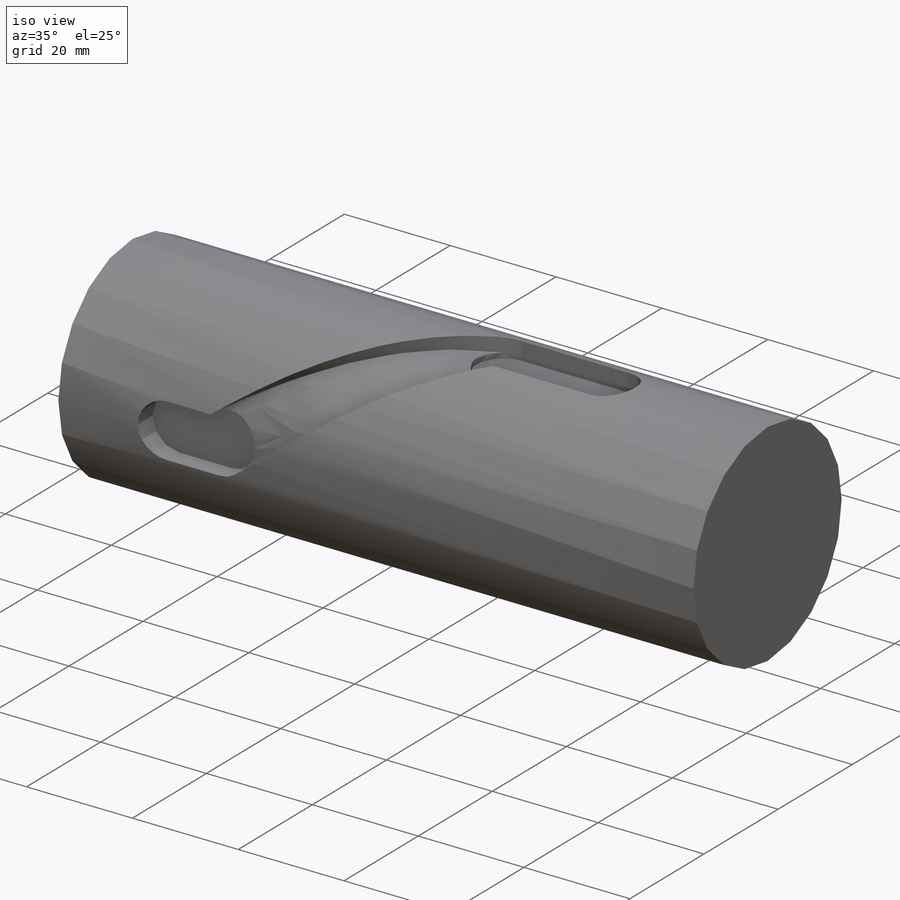
[diagram: iso view]
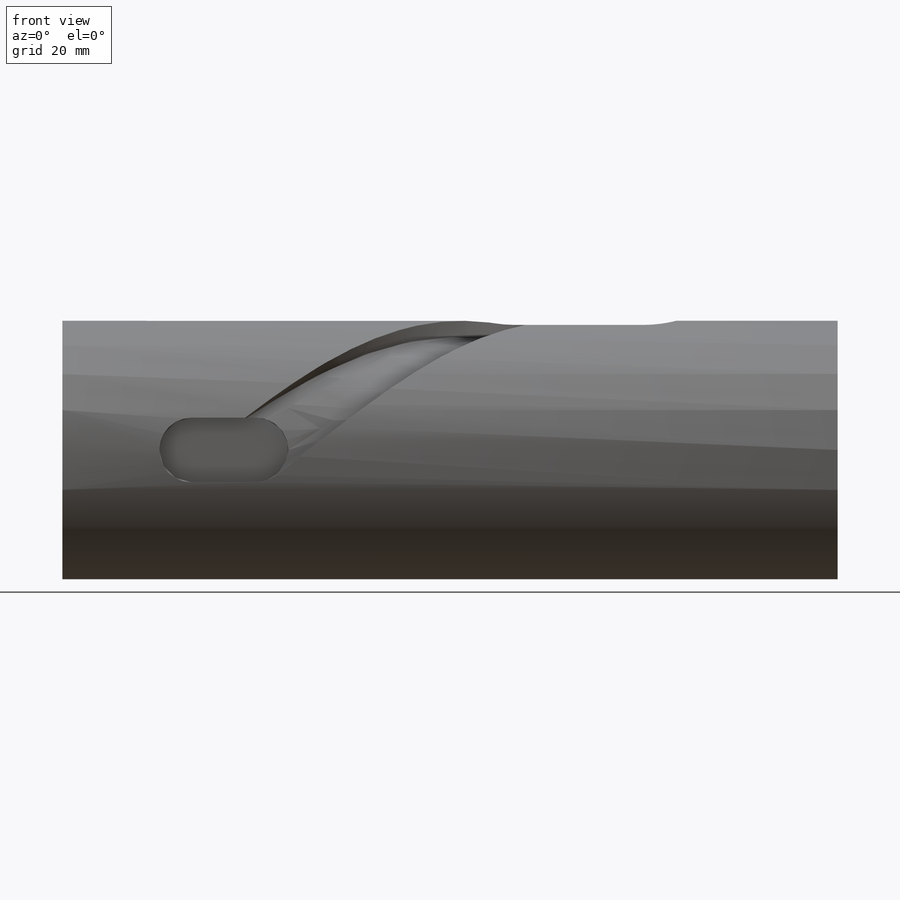
[diagram: front view]
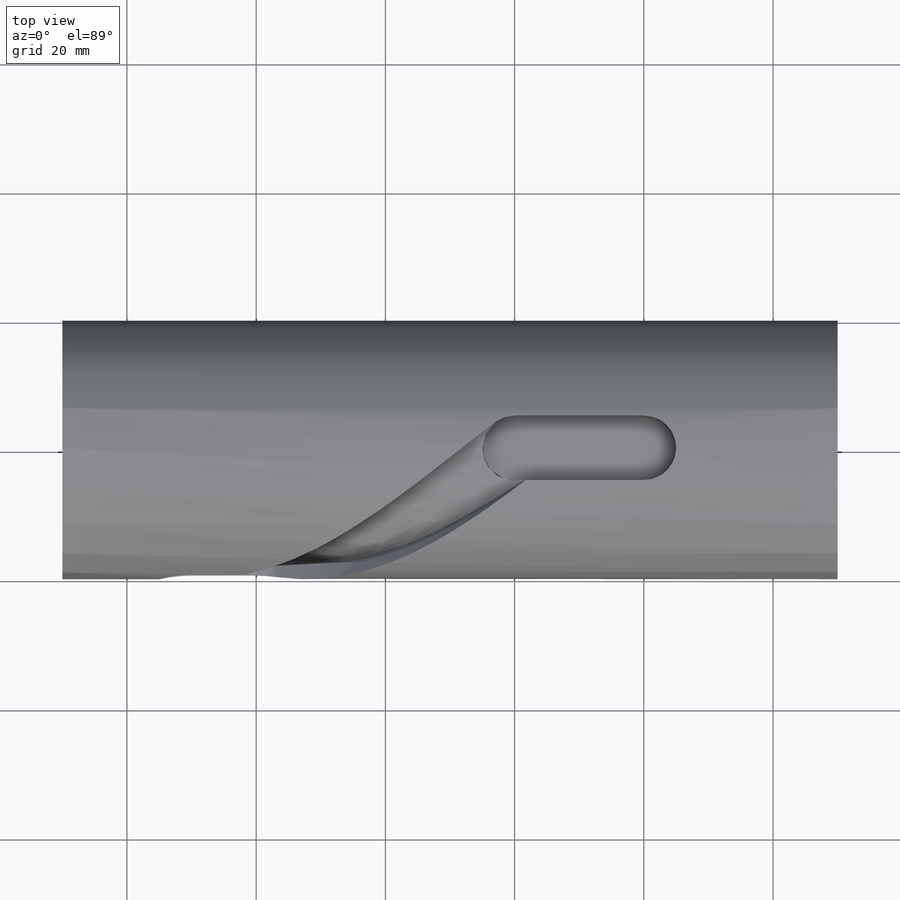
[diagram: top view]
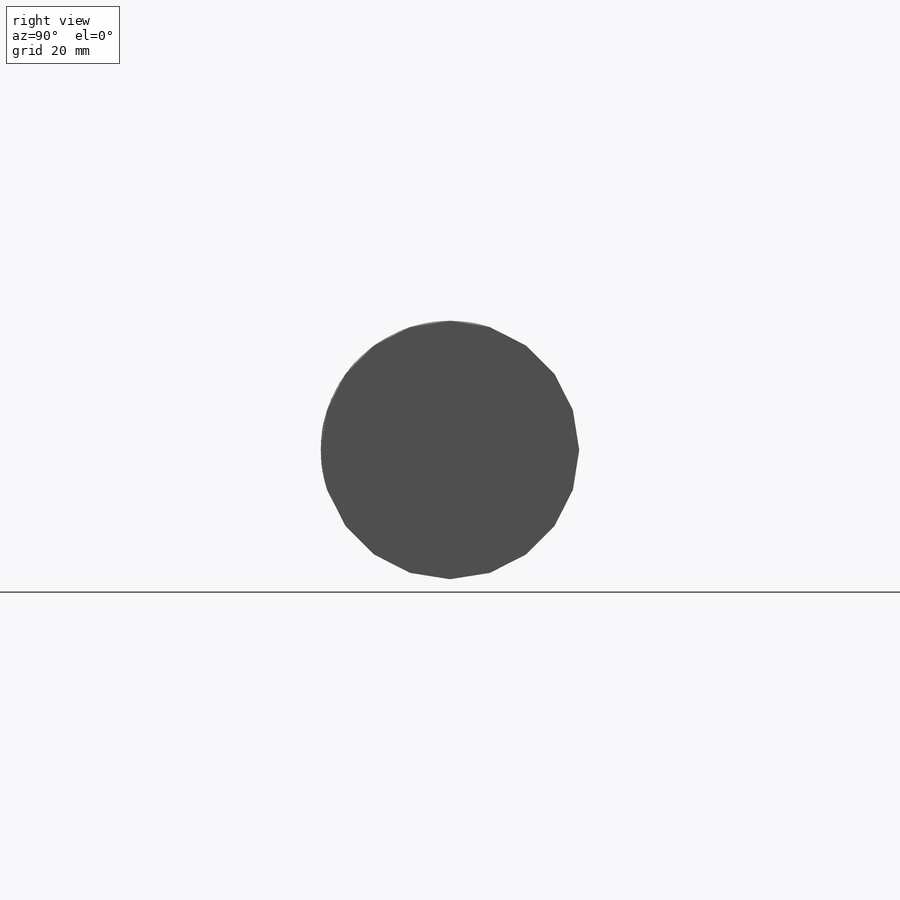
[diagram: right view]
SOLIDWORKS PART (.sldprt)
format: sldprt  version: not decoded by parser v0  size: 343,040 bytes
history: native  units: mm
features: plane x5, sketch x5, revolve x2, cut_extrude x2, material x1, helix x1, sweep x1 (+10 scaffold rows collapsed)
feature tree (27):
  scaffold x10  (default folders/planes/origin — collapsed)
  material  "Materiál <není určen>"
  plane  "XY"
  plane  "XZ"
  plane  "ZY"
  sketch  "Sketch1"  dims[D1=120.0mm D2=50.0mm D3=40.0mm]
  revolve  "Revolve1"  Angle=360deg
  sketch  "Sketch2"  dims[c1.D3=5.0mm c1.D1=10.0mm c1.D2=20.0mm c2.D3=10.0mm]
  cut_extrude  "Extrude1"  Depth=16mm
  sketch  "Sketch3"  dims[c1.D3=5.0mm c1.D1=20.0mm c1.D2=10.0mm c2.D3=20.0mm]
  cut_extrude  "Extrude2"  Depth=16mm
  plane  "Plane1"
  sketch  "Sketch4"
  helix  "Helix/Spiral1"  Pitch=40mm
  plane  "Plane2"
  sketch  "Sketch5"  dims[c1.D1=~9.935155mm c1.D2=5.0mm c2.D1=3.0mm c2.D3=5.0mm]
  revolve  "Revolve2"  Angle=360deg
  sweep  "Odebrat tažením po křivce1"
decode coverage: 9 of 11 modeling features carry decoded parameters
note: ~ marks probable driven/reference dimensions
note: suppression state not decoded; provenance and decode notes live in map.json
